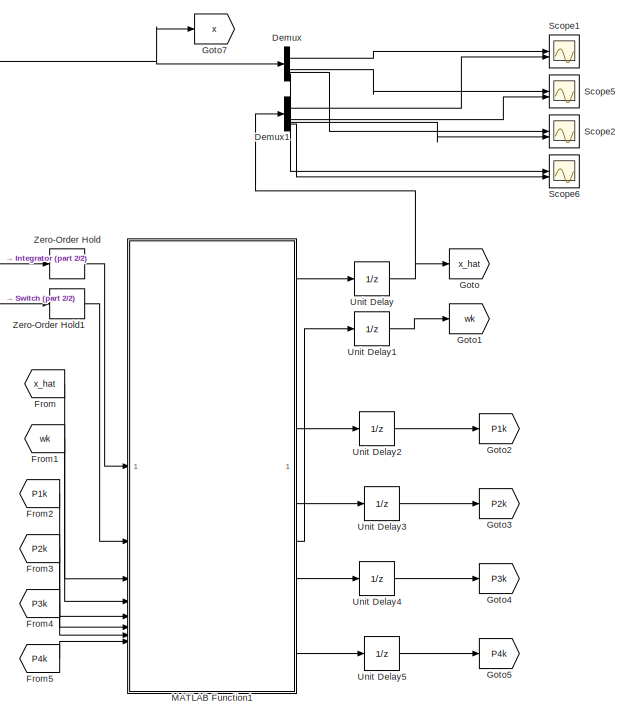
[diagram: root canvas - part 1/2, right side, full height]
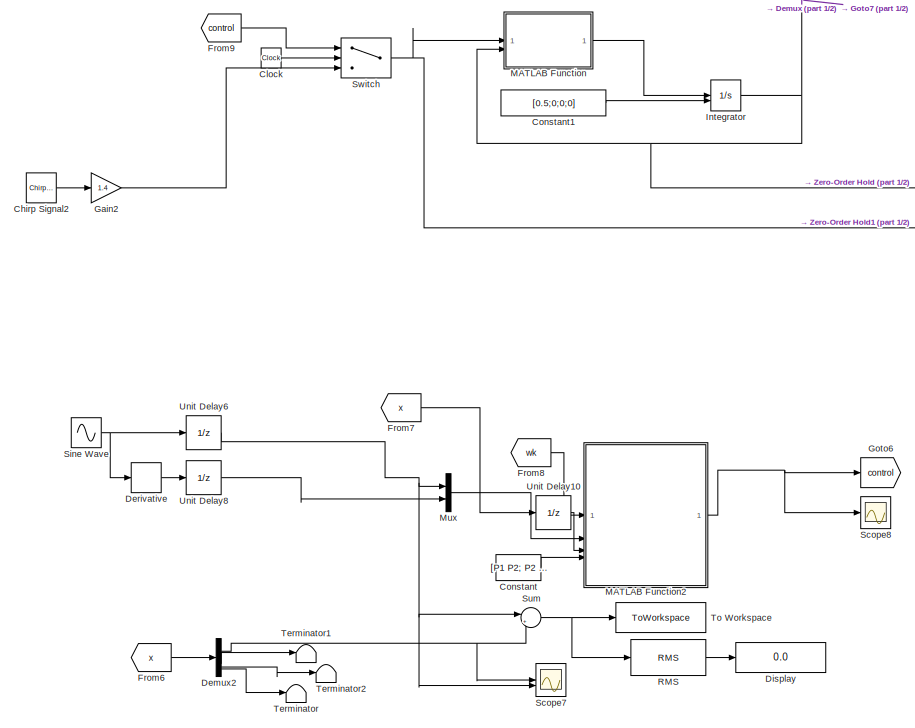
[diagram: root canvas - part 2/2, left side, full height]
MODEL slx_6bc3f89f237c
KIND model
CONFIG AbsTol = auto
CONFIG EnableMultiTasking = off
CONFIG FixedStep = 0.001
CONFIG MaxStep = auto
CONFIG MinStep = auto
CONFIG RelTol = 1e-3
CONFIG SampleTimeConstraint = Unconstrained
CONFIG SolverName = FixedStepAuto
CONFIG StartTime = 0.0
CONFIG StopTime = 50
BLOCK [Reference] Chirp Signal2  REF=simulink/Sources/Chirp Signal
  SourceBlock = simulink/Sources/Chirp Signal
  SourceType = chirp
BLOCK [Clock] Clock
BLOCK [Constant] Constant
  Value = [P1 P2; P2 P3]
BLOCK [Constant] Constant1
  Value = [0.5;0;0;0]
BLOCK [Demux] Demux
BLOCK [Demux] Demux1
BLOCK [Demux] Demux2
BLOCK [Derivative] Derivative
BLOCK [Display] Display
  Decimation = 1
BLOCK [From] From
  GotoTag = x_hat
BLOCK [From] From1
  GotoTag = wk
BLOCK [From] From2
  GotoTag = P1k
BLOCK [From] From3
  GotoTag = P2k
BLOCK [From] From4
  GotoTag = P3k
BLOCK [From] From5
  GotoTag = P4k
BLOCK [From] From6
  GotoTag = x
BLOCK [From] From7
  GotoTag = x
BLOCK [From] From8
  GotoTag = wk
BLOCK [From] From9
  GotoTag = control
BLOCK [Gain] Gain2
  Gain = 1.4
BLOCK [Goto] Goto
  GotoTag = x_hat
BLOCK [Goto] Goto1
  GotoTag = wk
BLOCK [Goto] Goto2
  GotoTag = P1k
BLOCK [Goto] Goto3
  GotoTag = P2k
BLOCK [Goto] Goto4
  GotoTag = P3k
BLOCK [Goto] Goto5
  GotoTag = P4k
BLOCK [Goto] Goto6
  GotoTag = control
BLOCK [Goto] Goto7
  GotoTag = x
BLOCK [Integrator] Integrator
  InitialConditionSource = external
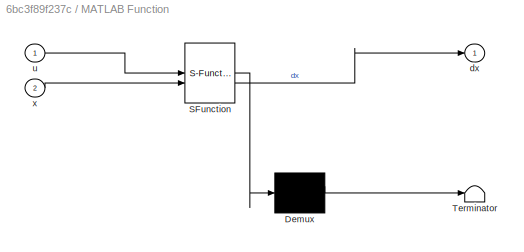
BLOCK [SubSystem] MATLAB Function
  ErrorFcn = Stateflow.Translate.translate
  PermitHierarchicalResolution = ExplicitOnly
  SFBlockType = MATLAB Function
  TreatAsAtomicUnit = on
BLOCK [Demux] MATLAB Function/ Demux 
  Outputs = 1
BLOCK [S-Function] MATLAB Function/ SFunction 
  EnableBusSupport = on
  FunctionName = sf_sfun
  PortCounts = [2 2]
  SFcnIsStateOwnerBlock = off
  SFunctionDeploymentMode = off
  Tag = Stateflow S-Function 2
BLOCK [Terminator] MATLAB Function/ Terminator 
BLOCK [Outport] MATLAB Function/dx
BLOCK [Inport] MATLAB Function/u
BLOCK [Inport] MATLAB Function/x
  Port = 2
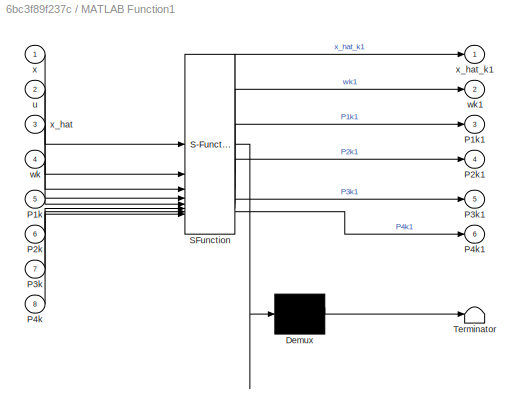
BLOCK [SubSystem] MATLAB Function1
  ErrorFcn = Stateflow.Translate.translate
  PermitHierarchicalResolution = ExplicitOnly
  SFBlockType = MATLAB Function
  TreatAsAtomicUnit = on
BLOCK [Demux] MATLAB Function1/ Demux 
  Outputs = 1
BLOCK [S-Function] MATLAB Function1/ SFunction 
  EnableBusSupport = on
  FunctionName = sf_sfun
  PortCounts = [8 7]
  SFcnIsStateOwnerBlock = off
  SFunctionDeploymentMode = off
  Tag = Stateflow S-Function 1
BLOCK [Terminator] MATLAB Function1/ Terminator 
BLOCK [Inport] MATLAB Function1/P1k
  Port = 5
BLOCK [Outport] MATLAB Function1/P1k1
  Port = 3
BLOCK [Inport] MATLAB Function1/P2k
  Port = 6
BLOCK [Outport] MATLAB Function1/P2k1
  Port = 4
BLOCK [Inport] MATLAB Function1/P3k
  Port = 7
BLOCK [Outport] MATLAB Function1/P3k1
  Port = 5
BLOCK [Inport] MATLAB Function1/P4k
  Port = 8
BLOCK [Outport] MATLAB Function1/P4k1
  Port = 6
BLOCK [Inport] MATLAB Function1/u
  Port = 2
BLOCK [Inport] MATLAB Function1/wk
  Port = 4
BLOCK [Outport] MATLAB Function1/wk1
  Port = 2
BLOCK [Inport] MATLAB Function1/x
BLOCK [Inport] MATLAB Function1/x_hat
  Port = 3
BLOCK [Outport] MATLAB Function1/x_hat_k1
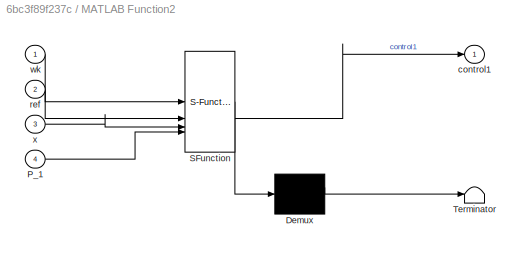
BLOCK [SubSystem] MATLAB Function2
  ErrorFcn = Stateflow.Translate.translate
  PermitHierarchicalResolution = ExplicitOnly
  SFBlockType = MATLAB Function
  TreatAsAtomicUnit = on
BLOCK [Demux] MATLAB Function2/ Demux 
  Outputs = 1
BLOCK [S-Function] MATLAB Function2/ SFunction 
  EnableBusSupport = on
  FunctionName = sf_sfun
  PortCounts = [4 2]
  SFcnIsStateOwnerBlock = off
  SFunctionDeploymentMode = off
  Tag = Stateflow S-Function 3
BLOCK [Terminator] MATLAB Function2/ Terminator 
BLOCK [Inport] MATLAB Function2/P_1
  Port = 4
BLOCK [Outport] MATLAB Function2/control1
BLOCK [Inport] MATLAB Function2/ref
  Port = 2
BLOCK [Inport] MATLAB Function2/wk
BLOCK [Inport] MATLAB Function2/x
  Port = 3
BLOCK [Mux] Mux
  DisplayOption = bar
  Inputs = 2
BLOCK [Reference] RMS  REF=dspstat3/RMS
  SourceBlock = dspstat3/RMS
  SourceType = RMS
  UserDataPersistent = on
BLOCK [Scope] Scope1
  Floating = off
  NumInputPorts = 2
  ScopeSpecificationString = Simulink.scopes.TimeScopeBlockCfg('CurrentConfiguration', extmgr.ConfigurationSet(extmgr.Configuration('Core','General UI',true),extmgr.Configuration('Core','Source UI',true),extmgr.Configuration('Sources','WiredSimulink',true,'DataLoggingVariableName','ScopeData1'),extmgr.Configuration('Visuals','Time Domain',true,'SerializedDisplays',{struct('MinYLimReal','-1.13272','MaxYLimReal','0.12586','YLab...<+1499ch>
BLOCK [Scope] Scope2
  Floating = off
  NumInputPorts = 2
  ScopeSpecificationString = Simulink.scopes.TimeScopeBlockCfg('CurrentConfiguration', extmgr.ConfigurationSet(extmgr.Configuration('Core','General UI',true),extmgr.Configuration('Core','Source UI',true),extmgr.Configuration('Sources','WiredSimulink',true,'DataLoggingVariableName','ScopeData2'),extmgr.Configuration('Visuals','Time Domain',true,'SerializedDisplays',{struct('MinYLimReal','-2.01215','MaxYLimReal','2.02796','YLab...<+1539ch>
BLOCK [Scope] Scope5
  Floating = off
  NumInputPorts = 2
  ScopeSpecificationString = Simulink.scopes.TimeScopeBlockCfg('CurrentConfiguration', extmgr.ConfigurationSet(extmgr.Configuration('Core','General UI',true),extmgr.Configuration('Core','Source UI',true),extmgr.Configuration('Sources','WiredSimulink',true,'DataLoggingVariableName','ScopeData3'),extmgr.Configuration('Visuals','Time Domain',true,'SerializedDisplays',{struct('MinYLimReal','-0.54521','MaxYLimReal','4.90685','YLab...<+1497ch>
BLOCK [Scope] Scope6
  Floating = off
  NumInputPorts = 2
  ScopeSpecificationString = Simulink.scopes.TimeScopeBlockCfg('CurrentConfiguration', extmgr.ConfigurationSet(extmgr.Configuration('Core','General UI',true),extmgr.Configuration('Core','Source UI',true),extmgr.Configuration('Sources','WiredSimulink',true,'DataLoggingVariableName','ScopeData4'),extmgr.Configuration('Visuals','Time Domain',true,'SerializedDisplays',{struct('MinYLimReal','-1.45251','MaxYLimReal','1.4612','YLabe...<+1535ch>
BLOCK [Scope] Scope7
  Floating = off
  NumInputPorts = 2
  ScopeSpecificationString = Simulink.scopes.TimeScopeBlockCfg('CurrentConfiguration', extmgr.ConfigurationSet(extmgr.Configuration('Core','General UI',true),extmgr.Configuration('Core','Source UI',true),extmgr.Configuration('Sources','WiredSimulink',true,'DataLoggingVariableName','ScopeData1'),extmgr.Configuration('Visuals','Time Domain',true,'SerializedDisplays',{struct('MinYLimReal','-0.45869','MaxYLimReal','0.60652','YLab...<+1528ch>
BLOCK [Scope] Scope8
  Floating = off
  NumInputPorts = 1
  ScopeSpecificationString = Simulink.scopes.TimeScopeBlockCfg('CurrentConfiguration', extmgr.ConfigurationSet(extmgr.Configuration('Core','General UI',true),extmgr.Configuration('Core','Source UI',true),extmgr.Configuration('Sources','WiredSimulink',true,'DataLoggingVariableName','ScopeData2'),extmgr.Configuration('Visuals','Time Domain',true,'SerializedDisplays',{struct('MinYLimReal','-6.48045','MaxYLimReal','31.78389','YLa...<+1505ch>
BLOCK [Sin] Sine Wave
  Amplitude = 0.35
  SampleTime = 0
BLOCK [Sum] Sum
  Inputs = |+-
BLOCK [Switch] Switch
  Criteria = u2 > Threshold
  InputSameDT = off
  SaturateOnIntegerOverflow = off
  Threshold = 0.1
BLOCK [Terminator] Terminator
BLOCK [Terminator] Terminator1
BLOCK [Terminator] Terminator2
BLOCK [ToWorkspace] To Workspace
  FixptAsFi = on
  MaxDataPoints = inf
  SampleTime = -1
  SaveFormat = Timeseries
  VariableName = track_error_pitch
BLOCK [UnitDelay] Unit Delay
  HasFrameUpgradeWarning = on
  SampleTime = -1
BLOCK [UnitDelay] Unit Delay1
  HasFrameUpgradeWarning = on
  InitialCondition = [rand(1,8)]
  SampleTime = -1
BLOCK [UnitDelay] Unit Delay10
  HasFrameUpgradeWarning = on
  InitialCondition = [0;0;0;0]
  SampleTime = -1
BLOCK [UnitDelay] Unit Delay2
  HasFrameUpgradeWarning = on
  InitialCondition = eye(2)*50000
  SampleTime = -1
BLOCK [UnitDelay] Unit Delay3
  HasFrameUpgradeWarning = on
  InitialCondition = eye(2)*50000
  SampleTime = -1
BLOCK [UnitDelay] Unit Delay4
  HasFrameUpgradeWarning = on
  InitialCondition = eye(2)*50000
  SampleTime = -1
BLOCK [UnitDelay] Unit Delay5
  HasFrameUpgradeWarning = on
  InitialCondition = eye(2)*50000
  SampleTime = -1
BLOCK [UnitDelay] Unit Delay6
  HasFrameUpgradeWarning = on
  SampleTime = -1
BLOCK [UnitDelay] Unit Delay8
  HasFrameUpgradeWarning = on
  SampleTime = -1
BLOCK [ZeroOrderHold] Zero-Order Hold
  SampleTime = -1
BLOCK [ZeroOrderHold] Zero-Order Hold1
  SampleTime = -1
LINE Chirp Signal2:1 -> Gain2:1
LINE Clock:1 -> Switch:2
LINE Constant1:1 -> Integrator:2
LINE Constant:1 -> MATLAB Function2:4
LINE Demux1:1 -> Scope1:2
LINE Demux1:2 -> Scope5:2
LINE Demux1:3 -> Scope2:2
LINE Demux1:4 -> Scope6:2
NET Demux2:1 -> Scope7:1, Sum:2
LINE Demux2:2 -> Terminator1:1
LINE Demux2:3 -> Terminator2:1
LINE Demux2:4 -> Terminator:1
LINE Demux:1 -> Scope1:1
LINE Demux:2 -> Scope5:1
LINE Demux:3 -> Scope2:1
LINE Demux:4 -> Scope6:1
LINE Derivative:1 -> Unit Delay8:1
LINE From1:1 -> MATLAB Function1:4
LINE From2:1 -> MATLAB Function1:5
LINE From3:1 -> MATLAB Function1:6
LINE From4:1 -> MATLAB Function1:7
LINE From5:1 -> MATLAB Function1:8
LINE From6:1 -> Demux2:1
LINE From7:1 -> Unit Delay10:1
LINE From8:1 -> MATLAB Function2:1
LINE From9:1 -> Switch:1
LINE From:1 -> MATLAB Function1:3
LINE Gain2:1 -> Switch:3
NET Integrator:1 -> Demux:1, Goto7:1, MATLAB Function:2, Zero-Order Hold:1
LINE MATLAB Function1:1 -> Unit Delay:1
LINE MATLAB Function1:2 -> Unit Delay1:1
LINE MATLAB Function1:3 -> Unit Delay2:1
LINE MATLAB Function1:4 -> Unit Delay3:1
LINE MATLAB Function1:5 -> Unit Delay4:1
LINE MATLAB Function1:6 -> Unit Delay5:1
NET MATLAB Function2:1 -> Goto6:1, Scope8:1
LINE MATLAB Function:1 -> Integrator:1
LINE Mux:1 -> MATLAB Function2:2
LINE RMS:1 -> Display:1
NET Sine Wave:1 -> Derivative:1, Unit Delay6:1
NET Sum:1 -> RMS:1, To Workspace:1
NET Switch:1 -> MATLAB Function:1, Zero-Order Hold1:1
LINE Unit Delay10:1 -> MATLAB Function2:3
LINE Unit Delay1:1 -> Goto1:1
LINE Unit Delay2:1 -> Goto2:1
LINE Unit Delay3:1 -> Goto3:1
LINE Unit Delay4:1 -> Goto4:1
LINE Unit Delay5:1 -> Goto5:1
NET Unit Delay6:1 -> Mux:1, Scope7:2, Sum:1
LINE Unit Delay8:1 -> Mux:2
NET Unit Delay:1 -> Demux1:1, Goto:1
LINE Zero-Order Hold1:1 -> MATLAB Function1:2
LINE Zero-Order Hold:1 -> MATLAB Function1:1
note: NET lines group one-source signal fan-out (src -> all destinations, sorted); 1:1 wires keep LINE
CHART MATLAB Function1 states=1 transitions=1
  STATE_LABEL 'eML_blk_kernel()'
  STATE_LABEL 'SCRIPT:\nfunction [x_hat_k1,wk1,P1k1,P2k1,P3k1,P4k1] = fcn(x,u,x_hat,wk,P1k,P2k,P3k,P4k)\n\n%% Constant weights\n\nw_1=0.15;\n%w_2=0.1; %Revisar que valores podemos usar\n\n\n%% Neural states\n\nx_hat_k_1 = wk(1)*tanh(x(3)) +  wk(2)*tanh(x(1));\nx_hat_k_2 = wk(3)*tanh(x(4)) +  wk(4)*tanh(x(2));\n\nx_hat_k_3 = wk(5)*tanh(x(3)) +  wk(6)*tanh(x(1)) + w_1*u(1);\nx_hat_k_4 = wk(7)*tanh(x(4)) +  wk(8)*tanh(x(2)) + w_1...<+783ch>'
CHART MATLAB Function states=1 transitions=1
  STATE_LABEL 'eML_blk_kernel()'
  STATE_LABEL 'SCRIPT:\nfunction dx = fcn(u, x)\nm1 = 1;\nm2 = 2; \nk1 = 2;\nk2 = 3;\nb1 = 0.2;\nb2 = 0.4;\n\nx1 = x(1);  \nx2 = x(2); \nx3 = x(3);  \nx4 = x(4); \n\ndx1 = x3;\ndx2 = x4;\ndx3 = u/m1-(k1/m1)*(x1-x2)-(b1/m1)*(x3-x4);\ndx4 = (k1/m2)*(x1-x2)+(b1/m2)*(x3-x4)-(k2/m2)*x2-(b2/m2)*x4;\n\ndx = [dx1;dx2;dx3;dx4];\n\n\n\n'
CHART MATLAB Function2 states=1 transitions=1
  STATE_LABEL 'eML_blk_kernel()'
  STATE_LABEL "SCRIPT:\nfunction control1  = fcn(wk,ref,x,P_1)\n\n\n%% Constant weights\n\nw_1 = 0.015;\n\n\n%% Neural model\n\n\n%V1\nf1=[wk(1)*tanh(x(3)) +  wk(2)*tanh(x(1));wk(5)*tanh(x(3)) +  wk(6)*tanh(x(1))];\ng1=[0;w_1];\n\n\n\n\n%% Control law\n\n%Falta cambiar las P's [PSO] y checar ref\n\nR=1;\ncontrol1 = -1/2*(R+1/2*g1'*P_1*g1)\\g1'*P_1*(f1-[ref(1);ref(2)]);\n\n\n\n"
CHART  states=0 transitions=0
CHART  states=0 transitions=0
CHART  states=0 transitions=0
